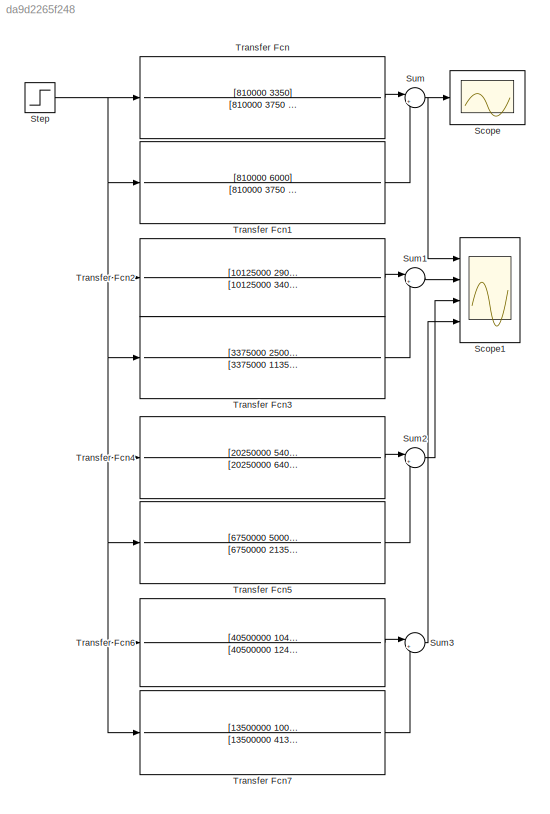
MODEL slx_da9d2265f248
KIND model
CONFIG AbsTol = auto
CONFIG EnableMultiTasking = off
CONFIG FixedStep = auto
CONFIG MaxStep = auto
CONFIG MinStep = auto
CONFIG RelTol = 1e-3
CONFIG SampleTimeConstraint = Unconstrained
CONFIG Solver = VariableStepAuto
CONFIG SolverName = VariableStepAuto
CONFIG StartTime = 0.0
CONFIG StopTime = 10
BLOCK [Scope] Scope
  Floating = off
  NumInputPorts = 1
  Ports = [1]
  ScopeSpecificationString = Simulink.scopes.TimeScopeBlockCfg('CurrentConfiguration', extmgr.ConfigurationSet(extmgr.Configuration('Core','General UI',true),extmgr.Configuration('Core','Source UI',true),extmgr.Configuration('Sources','WiredSimulink',true),extmgr.Configuration('Visuals','Time Domain',true,'SerializedDisplays',{struct('MinYLimReal','-35.13804','MaxYLimReal','316.24238','YLabelReal','','MinYLimMag','0.00000','M...<+1360ch>
BLOCK [Scope] Scope1
  Floating = off
  NumInputPorts = 4
  Ports = [4]
  ScopeSpecificationString = Simulink.scopes.TimeScopeBlockCfg('CurrentConfiguration', extmgr.ConfigurationSet(extmgr.Configuration('Core','General UI',true),extmgr.Configuration('Core','Source UI',true),extmgr.Configuration('Sources','WiredSimulink',true,'DataLoggingVariableName','ScopeData1'),extmgr.Configuration('Visuals','Time Domain',true,'SerializedDisplays',{struct('MinYLimReal','280.33728','MaxYLimReal','281.69844','Y...<+1468ch>
BLOCK [Step] Step
  After = 20
  SampleTime = 1
  Time = 3
BLOCK [Sum] Sum
  Inputs = |++
  Ports = [2, 1]
BLOCK [Sum] Sum1
  Inputs = |++
  Ports = [2, 1]
BLOCK [Sum] Sum2
  Inputs = |++
  Ports = [2, 1]
BLOCK [Sum] Sum3
  Inputs = |++
  Ports = [2, 1]
BLOCK [TransferFcn] Transfer Fcn
  Denominator = [810000 3750 1]
  Numerator = [810000 3350]
BLOCK [TransferFcn] Transfer Fcn1
  Denominator = [810000 3750 1]
  Numerator = [810000 6000]
BLOCK [TransferFcn] Transfer Fcn2
  Denominator = [10125000 34050 3]
  Numerator = [10125000 29050]
BLOCK [TransferFcn] Transfer Fcn3
  Denominator = [3375000 11350 1]
  Numerator = [3375000 25000]
BLOCK [TransferFcn] Transfer Fcn4
  Denominator = [20250000 64050 3]
  Numerator = [20250000 54050]
BLOCK [TransferFcn] Transfer Fcn5
  Denominator = [6750000 21350 1]
  Numerator = [6750000 50000]
BLOCK [TransferFcn] Transfer Fcn6
  Denominator = [40500000 124050 3]
  Numerator = [40500000 104050]
BLOCK [TransferFcn] Transfer Fcn7
  Denominator = [13500000 41350 1]
  Numerator = [13500000 100000]
NET Step:1 -> Transfer Fcn1:1, Transfer Fcn2:1, Transfer Fcn3:1, Transfer Fcn4:1, Transfer Fcn5:1, Transfer Fcn6:1, Transfer Fcn7:1, Transfer Fcn:1
LINE Sum1:1 -> Scope1:2
LINE Sum2:1 -> Scope1:3
LINE Sum3:1 -> Scope1:4
NET Sum:1 -> Scope1:1, Scope:1
LINE Transfer Fcn1:1 -> Sum:2
LINE Transfer Fcn2:1 -> Sum1:1
LINE Transfer Fcn3:1 -> Sum1:2
LINE Transfer Fcn4:1 -> Sum2:1
LINE Transfer Fcn5:1 -> Sum2:2
LINE Transfer Fcn6:1 -> Sum3:1
LINE Transfer Fcn7:1 -> Sum3:2
LINE Transfer Fcn:1 -> Sum:1
note: NET lines group one-source signal fan-out (src -> all destinations, sorted); 1:1 wires keep LINE
